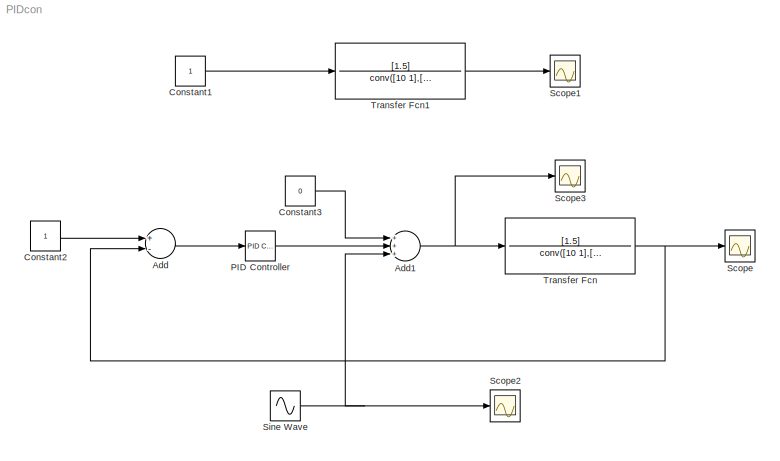
MODEL PIDcon
KIND model
BLOCK [Sum] Add
  InputSameDT = off
  Inputs = +-
  OutDataTypeMode = Inherit via internal rule
  OutScaling = 2^-10
  Ports = [2, 1]
  SaturateOnIntegerOverflow = off
BLOCK [Sum] Add1
  InputSameDT = off
  Inputs = +++
  OutDataTypeMode = Inherit via internal rule
  OutScaling = 2^-10
  Ports = [3, 1]
  SaturateOnIntegerOverflow = off
BLOCK [Constant] Constant1
BLOCK [Constant] Constant2
BLOCK [Constant] Constant3
  Value = 0
BLOCK [Reference] PID Controller  REF=simulink_extras/Additional\nLinear/PID Controller
  D = 0
  I = 0.1
  P = 2
  Ports = [1, 1]
  ShowPortLabels = on
  SourceBlock = simulink_extras/Additional\nLinear/PID Controller
  SourceType = PID Controller
BLOCK [Scope] Scope
  DataFormat = StructureWithTime
  NumInputPorts = 1
  Ports = [1]
BLOCK [Scope] Scope1
  DataFormat = StructureWithTime
  NumInputPorts = 1
  Ports = [1]
  SaveName = ScopeData1
BLOCK [Scope] Scope2
  DataFormat = StructureWithTime
  LimitDataPoints = off
  NumInputPorts = 1
  Ports = [1]
  SaveName = ScopeData2
BLOCK [Scope] Scope3
  DataFormat = StructureWithTime
  NumInputPorts = 1
  Ports = [1]
  SaveName = ScopeData3
  TimeRange = 100
BLOCK [Sin] Sine Wave
  Amplitude = 0
  Ports = [0, 1]
  SampleTime = 0
  SineType = Time based
BLOCK [TransferFcn] Transfer Fcn
  Denominator = conv([10 1],[10 1])
  Numerator = [1.5]
BLOCK [TransferFcn] Transfer Fcn1
  Denominator = conv([10 1],[10 1])
  Numerator = [1.5]
NET Add1:1 -> Scope3:1, Transfer Fcn:1
LINE Add:1 -> PID Controller:1
LINE Constant1:1 -> Transfer Fcn1:1
LINE Constant2:1 -> Add:1
LINE Constant3:1 -> Add1:1
LINE PID Controller:1 -> Add1:2
NET Sine Wave:1 -> Add1:3, Scope2:1
LINE Transfer Fcn1:1 -> Scope1:1
NET Transfer Fcn:1 -> Add:2, Scope:1
note: NET lines group one-source signal fan-out (src -> all destinations, sorted); 1:1 wires keep LINE
